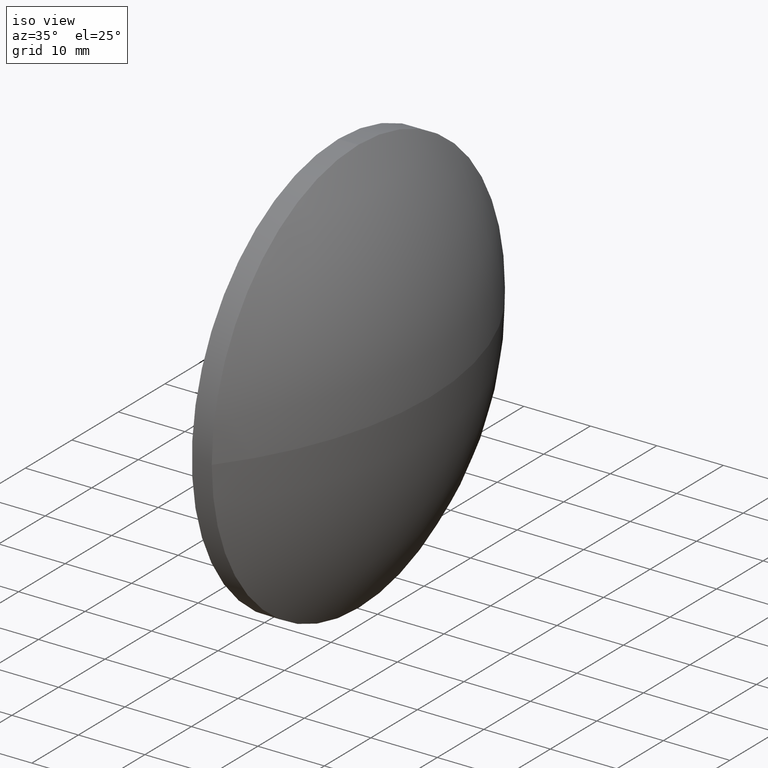
[diagram: clean part render]
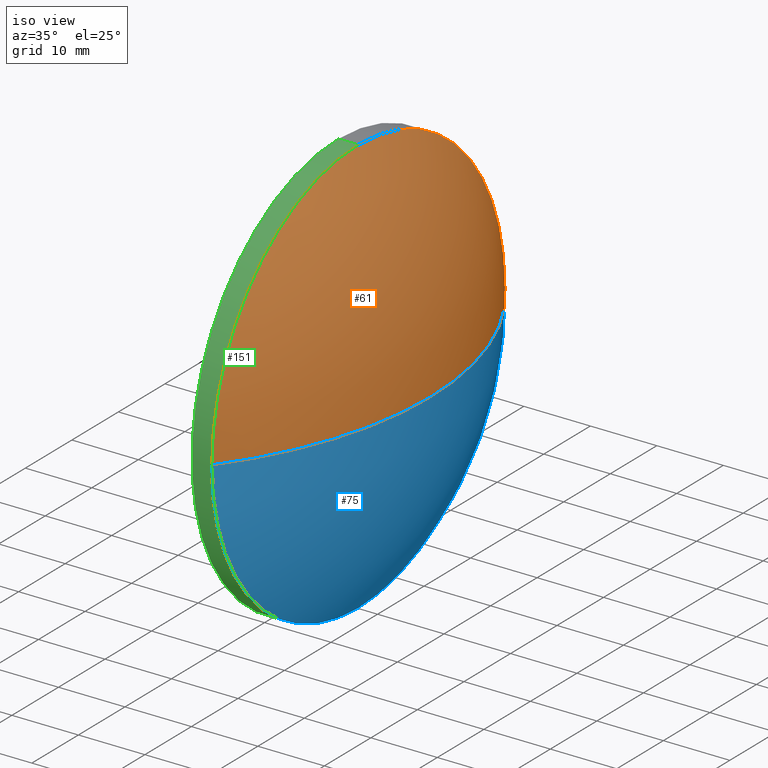
[diagram: same view with three faces highlighted in distinct colors, each labeled with its STEP entity id]
A machine part, iso view with three faces highlighted in distinct colors.
Their STEP definitions:

[orange] entity #61 — the highlighted spherical surface has radius 51.6403 mm.
#3 = AXIS2_PLACEMENT_3D ( 'NONE', #17, #139, #34 ) ;
#6 = EDGE_LOOP ( 'NONE', ( #167, #160, #132, #102 ) ) ;
#17 = CARTESIAN_POINT ( 'NONE',  ( 347.7808162229159700, 17.73166339868760100, 0.0000000000000000000 ) ) ;
#21 = VERTEX_POINT ( 'NONE', #122 ) ;
#22 = DIRECTION ( 'NONE',  ( 0.0000000000000000000, 1.000000000000000000, 0.0000000000000000000 ) ) ;
#25 = VERTEX_POINT ( 'NONE', #150 ) ;
#28 = FACE_OUTER_BOUND ( 'NONE', #6, .T. ) ;
#34 = DIRECTION ( 'NONE',  ( 1.000000000000000000, 0.0000000000000000000, 0.0000000000000000000 ) ) ;
#37 = CARTESIAN_POINT ( 'NONE',  ( 347.7808162229159700, 17.73166339868760100, 0.0000000000000000000 ) ) ;
#54 = VERTEX_POINT ( 'NONE', #164 ) ;
#59 = VERTEX_POINT ( 'NONE', #107 ) ;
#61 = ADVANCED_FACE ( 'NONE', ( #28 ), #81, .T. ) ;
#67 = DIRECTION ( 'NONE',  ( -0.0000000000000000000, 0.0000000000000000000, -1.000000000000000000 ) ) ;
#76 = AXIS2_PLACEMENT_3D ( 'NONE', #183, #93, #80 ) ;
#80 = DIRECTION ( 'NONE',  ( 0.0000000000000000000, 0.0000000000000000000, 1.000000000000000000 ) ) ;
#81 = SPHERICAL_SURFACE ( 'NONE', #173, 51.64031716417910900 ) ;
#82 = CIRCLE ( 'NONE', #76, 31.50000000000000000 ) ;
#84 = AXIS2_PLACEMENT_3D ( 'NONE', #37, #170, #169 ) ;
#87 = EDGE_CURVE ( 'NONE', #59, #54, #82, .T. ) ;
#89 = CIRCLE ( 'NONE', #84, 51.64031716417910900 ) ;
#93 = DIRECTION ( 'NONE',  ( -1.000000000000000000, -0.0000000000000000000, -0.0000000000000000000 ) ) ;
#102 = ORIENTED_EDGE ( 'NONE', *, *, #87, .F. ) ;
#107 = CARTESIAN_POINT ( 'NONE',  ( 388.7011333870950700, -13.76833660131240200, -3.857637417314162700E-015 ) ) ;
#111 = AXIS2_PLACEMENT_3D ( 'NONE', #156, #137, #153 ) ;
#122 = CARTESIAN_POINT ( 'NONE',  ( 399.4211333870950400, 17.73166339868760500, 0.0000000000000000000 ) ) ;
#132 = ORIENTED_EDGE ( 'NONE', *, *, #149, .F. ) ;
#136 = CARTESIAN_POINT ( 'NONE',  ( 347.7808162229159700, 17.73166339868760100, 0.0000000000000000000 ) ) ;
#137 = DIRECTION ( 'NONE',  ( -1.000000000000000000, -0.0000000000000000000, -0.0000000000000000000 ) ) ;
#139 = DIRECTION ( 'NONE',  ( -0.0000000000000000000, 0.0000000000000000000, 1.000000000000000000 ) ) ;
#146 = CIRCLE ( 'NONE', #3, 51.64031716417910900 ) ;
#149 = EDGE_CURVE ( 'NONE', #54, #25, #161, .T. ) ;
#150 = CARTESIAN_POINT ( 'NONE',  ( 388.7011333870950700, 49.23166339868760800, 0.0000000000000000000 ) ) ;
#152 = EDGE_CURVE ( 'NONE', #21, #25, #146, .T. ) ;
#153 = DIRECTION ( 'NONE',  ( 0.0000000000000000000, 0.0000000000000000000, 1.000000000000000000 ) ) ;
#156 = CARTESIAN_POINT ( 'NONE',  ( 388.7011333870950700, 17.73166339868760100, 0.0000000000000000000 ) ) ;
#160 = ORIENTED_EDGE ( 'NONE', *, *, #152, .T. ) ;
#161 = CIRCLE ( 'NONE', #111, 31.50000000000000000 ) ;
#164 = CARTESIAN_POINT ( 'NONE',  ( 388.7011333870950700, 17.73166339868760100, 31.50000000000000000 ) ) ;
#167 = ORIENTED_EDGE ( 'NONE', *, *, #180, .F. ) ;
#169 = DIRECTION ( 'NONE',  ( 0.0000000000000000000, 1.000000000000000000, 1.224646799147353200E-016 ) ) ;
#170 = DIRECTION ( 'NONE',  ( 0.0000000000000000000, 1.224646799147353200E-016, -1.000000000000000000 ) ) ;
#173 = AXIS2_PLACEMENT_3D ( 'NONE', #136, #67, #22 ) ;
#180 = EDGE_CURVE ( 'NONE', #21, #59, #89, .T. ) ;
#183 = CARTESIAN_POINT ( 'NONE',  ( 388.7011333870950700, 17.73166339868760100, 0.0000000000000000000 ) ) ;

[blue] entity #75 — the highlighted spherical surface has radius 51.6403 mm.
#3 = AXIS2_PLACEMENT_3D ( 'NONE', #17, #139, #34 ) ;
#4 = CARTESIAN_POINT ( 'NONE',  ( 388.7011333870950700, 17.73166339868760100, 0.0000000000000000000 ) ) ;
#5 = DIRECTION ( 'NONE',  ( 0.0000000000000000000, 0.0000000000000000000, 1.000000000000000000 ) ) ;
#7 = EDGE_CURVE ( 'NONE', #25, #88, #71, .T. ) ;
#8 = SPHERICAL_SURFACE ( 'NONE', #52, 51.64031716417910900 ) ;
#17 = CARTESIAN_POINT ( 'NONE',  ( 347.7808162229159700, 17.73166339868760100, 0.0000000000000000000 ) ) ;
#21 = VERTEX_POINT ( 'NONE', #122 ) ;
#25 = VERTEX_POINT ( 'NONE', #150 ) ;
#27 = ORIENTED_EDGE ( 'NONE', *, *, #163, .F. ) ;
#30 = CARTESIAN_POINT ( 'NONE',  ( 388.7011333870950700, 17.73166339868760100, 0.0000000000000000000 ) ) ;
#31 = DIRECTION ( 'NONE',  ( -1.000000000000000000, -0.0000000000000000000, -0.0000000000000000000 ) ) ;
#34 = DIRECTION ( 'NONE',  ( 1.000000000000000000, 0.0000000000000000000, 0.0000000000000000000 ) ) ;
#36 = CARTESIAN_POINT ( 'NONE',  ( 347.7808162229159700, 17.73166339868760100, 0.0000000000000000000 ) ) ;
#37 = CARTESIAN_POINT ( 'NONE',  ( 347.7808162229159700, 17.73166339868760100, 0.0000000000000000000 ) ) ;
#44 = CIRCLE ( 'NONE', #72, 31.50000000000000000 ) ;
#52 = AXIS2_PLACEMENT_3D ( 'NONE', #36, #77, #79 ) ;
#59 = VERTEX_POINT ( 'NONE', #107 ) ;
#65 = EDGE_LOOP ( 'NONE', ( #95, #96, #27, #133 ) ) ;
#69 = DIRECTION ( 'NONE',  ( -1.000000000000000000, -0.0000000000000000000, -0.0000000000000000000 ) ) ;
#71 = CIRCLE ( 'NONE', #186, 31.50000000000000000 ) ;
#72 = AXIS2_PLACEMENT_3D ( 'NONE', #4, #69, #5 ) ;
#75 = ADVANCED_FACE ( 'NONE', ( #185 ), #8, .T. ) ;
#77 = DIRECTION ( 'NONE',  ( -0.0000000000000000000, 0.0000000000000000000, -1.000000000000000000 ) ) ;
#79 = DIRECTION ( 'NONE',  ( 0.0000000000000000000, 1.000000000000000000, 0.0000000000000000000 ) ) ;
#84 = AXIS2_PLACEMENT_3D ( 'NONE', #37, #170, #169 ) ;
#88 = VERTEX_POINT ( 'NONE', #127 ) ;
#89 = CIRCLE ( 'NONE', #84, 51.64031716417910900 ) ;
#95 = ORIENTED_EDGE ( 'NONE', *, *, #152, .F. ) ;
#96 = ORIENTED_EDGE ( 'NONE', *, *, #180, .T. ) ;
#107 = CARTESIAN_POINT ( 'NONE',  ( 388.7011333870950700, -13.76833660131240200, -3.857637417314162700E-015 ) ) ;
#122 = CARTESIAN_POINT ( 'NONE',  ( 399.4211333870950400, 17.73166339868760500, 0.0000000000000000000 ) ) ;
#127 = CARTESIAN_POINT ( 'NONE',  ( 388.7011333870950700, 17.73166339868760500, -31.50000000000000000 ) ) ;
#133 = ORIENTED_EDGE ( 'NONE', *, *, #7, .F. ) ;
#139 = DIRECTION ( 'NONE',  ( -0.0000000000000000000, 0.0000000000000000000, 1.000000000000000000 ) ) ;
#146 = CIRCLE ( 'NONE', #3, 51.64031716417910900 ) ;
#150 = CARTESIAN_POINT ( 'NONE',  ( 388.7011333870950700, 49.23166339868760800, 0.0000000000000000000 ) ) ;
#152 = EDGE_CURVE ( 'NONE', #21, #25, #146, .T. ) ;
#163 = EDGE_CURVE ( 'NONE', #88, #59, #44, .T. ) ;
#169 = DIRECTION ( 'NONE',  ( 0.0000000000000000000, 1.000000000000000000, 1.224646799147353200E-016 ) ) ;
#170 = DIRECTION ( 'NONE',  ( 0.0000000000000000000, 1.224646799147353200E-016, -1.000000000000000000 ) ) ;
#175 = DIRECTION ( 'NONE',  ( 0.0000000000000000000, 0.0000000000000000000, 1.000000000000000000 ) ) ;
#180 = EDGE_CURVE ( 'NONE', #21, #59, #89, .T. ) ;
#185 = FACE_OUTER_BOUND ( 'NONE', #65, .T. ) ;
#186 = AXIS2_PLACEMENT_3D ( 'NONE', #30, #31, #175 ) ;

[green] entity #151 — the highlighted cylindrical surface (partial cylindrical patch) has radius 31.5 mm, axis along (-1, -0, -0).
#4 = CARTESIAN_POINT ( 'NONE',  ( 388.7011333870950700, 17.73166339868760100, 0.0000000000000000000 ) ) ;
#5 = DIRECTION ( 'NONE',  ( 0.0000000000000000000, 0.0000000000000000000, 1.000000000000000000 ) ) ;
#15 = ORIENTED_EDGE ( 'NONE', *, *, #32, .T. ) ;
#16 = VECTOR ( 'NONE', #113, 1000.000000000000000 ) ;
#19 = DIRECTION ( 'NONE',  ( -1.000000000000000000, -0.0000000000000000000, -0.0000000000000000000 ) ) ;
#26 = LINE ( 'NONE', #97, #16 ) ;
#32 = EDGE_CURVE ( 'NONE', #54, #126, #118, .T. ) ;
#33 = CARTESIAN_POINT ( 'NONE',  ( 385.7011333870950700, 17.73166339868760100, 31.50000000000000000 ) ) ;
#35 = VECTOR ( 'NONE', #49, 1000.000000000000000 ) ;
#43 = ORIENTED_EDGE ( 'NONE', *, *, #94, .F. ) ;
#44 = CIRCLE ( 'NONE', #72, 31.50000000000000000 ) ;
#47 = CARTESIAN_POINT ( 'NONE',  ( 366.6621783252726300, 17.73166339868760100, 0.0000000000000000000 ) ) ;
#49 = DIRECTION ( 'NONE',  ( -1.000000000000000000, -0.0000000000000000000, -0.0000000000000000000 ) ) ;
#50 = CIRCLE ( 'NONE', #62, 31.50000000000000000 ) ;
#51 = DIRECTION ( 'NONE',  ( 0.0000000000000000000, 0.0000000000000000000, 1.000000000000000000 ) ) ;
#54 = VERTEX_POINT ( 'NONE', #164 ) ;
#56 = FACE_OUTER_BOUND ( 'NONE', #110, .T. ) ;
#59 = VERTEX_POINT ( 'NONE', #107 ) ;
#62 = AXIS2_PLACEMENT_3D ( 'NONE', #64, #19, #165 ) ;
#63 = DIRECTION ( 'NONE',  ( -1.000000000000000000, -0.0000000000000000000, -0.0000000000000000000 ) ) ;
#64 = CARTESIAN_POINT ( 'NONE',  ( 385.7011333870950700, 17.73166339868760100, 0.0000000000000000000 ) ) ;
#69 = DIRECTION ( 'NONE',  ( -1.000000000000000000, -0.0000000000000000000, -0.0000000000000000000 ) ) ;
#72 = AXIS2_PLACEMENT_3D ( 'NONE', #4, #69, #5 ) ;
#73 = ORIENTED_EDGE ( 'NONE', *, *, #157, .F. ) ;
#76 = AXIS2_PLACEMENT_3D ( 'NONE', #183, #93, #80 ) ;
#80 = DIRECTION ( 'NONE',  ( 0.0000000000000000000, 0.0000000000000000000, 1.000000000000000000 ) ) ;
#82 = CIRCLE ( 'NONE', #76, 31.50000000000000000 ) ;
#87 = EDGE_CURVE ( 'NONE', #59, #54, #82, .T. ) ;
#88 = VERTEX_POINT ( 'NONE', #127 ) ;
#90 = AXIS2_PLACEMENT_3D ( 'NONE', #47, #63, #51 ) ;
#93 = DIRECTION ( 'NONE',  ( -1.000000000000000000, -0.0000000000000000000, -0.0000000000000000000 ) ) ;
#94 = EDGE_CURVE ( 'NONE', #88, #172, #26, .T. ) ;
#97 = CARTESIAN_POINT ( 'NONE',  ( 366.6621783252726300, 17.73166339868760500, -31.50000000000000000 ) ) ;
#104 = ORIENTED_EDGE ( 'NONE', *, *, #87, .T. ) ;
#107 = CARTESIAN_POINT ( 'NONE',  ( 388.7011333870950700, -13.76833660131240200, -3.857637417314162700E-015 ) ) ;
#108 = CARTESIAN_POINT ( 'NONE',  ( 366.6621783252726300, 17.73166339868760100, 31.50000000000000000 ) ) ;
#110 = EDGE_LOOP ( 'NONE', ( #43, #144, #104, #15, #73 ) ) ;
#113 = DIRECTION ( 'NONE',  ( -1.000000000000000000, -0.0000000000000000000, -0.0000000000000000000 ) ) ;
#118 = LINE ( 'NONE', #108, #35 ) ;
#126 = VERTEX_POINT ( 'NONE', #33 ) ;
#127 = CARTESIAN_POINT ( 'NONE',  ( 388.7011333870950700, 17.73166339868760500, -31.50000000000000000 ) ) ;
#144 = ORIENTED_EDGE ( 'NONE', *, *, #163, .T. ) ;
#151 = ADVANCED_FACE ( 'NONE', ( #56 ), #176, .T. ) ;
#157 = EDGE_CURVE ( 'NONE', #172, #126, #50, .T. ) ;
#163 = EDGE_CURVE ( 'NONE', #88, #59, #44, .T. ) ;
#164 = CARTESIAN_POINT ( 'NONE',  ( 388.7011333870950700, 17.73166339868760100, 31.50000000000000000 ) ) ;
#165 = DIRECTION ( 'NONE',  ( 0.0000000000000000000, 0.0000000000000000000, 1.000000000000000000 ) ) ;
#168 = CARTESIAN_POINT ( 'NONE',  ( 385.7011333870950700, 17.73166339868760500, -31.50000000000000000 ) ) ;
#172 = VERTEX_POINT ( 'NONE', #168 ) ;
#176 = CYLINDRICAL_SURFACE ( 'NONE', #90, 31.50000000000000000 ) ;
#183 = CARTESIAN_POINT ( 'NONE',  ( 388.7011333870950700, 17.73166339868760100, 0.0000000000000000000 ) ) ;